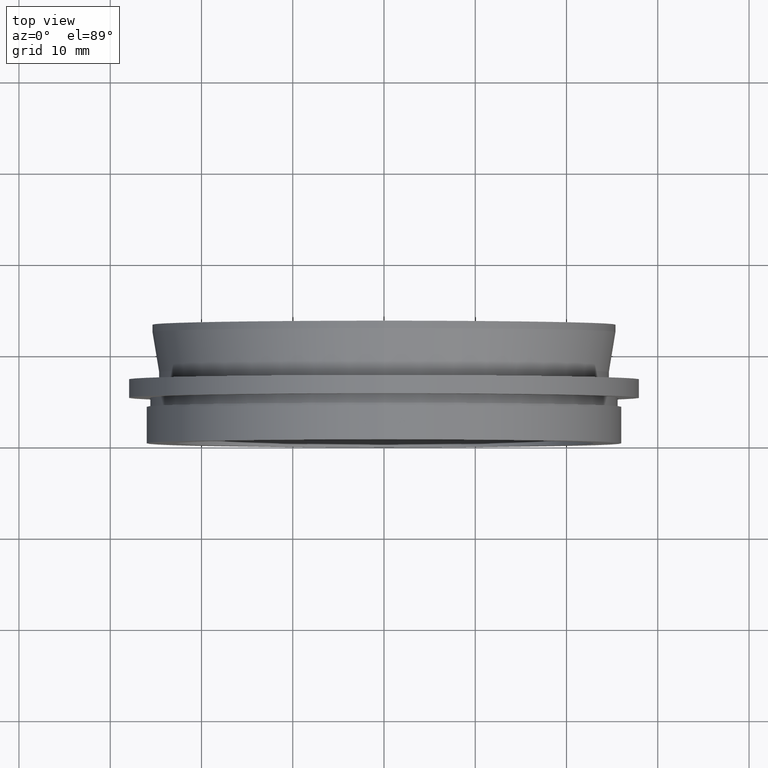
[diagram: clean part render]
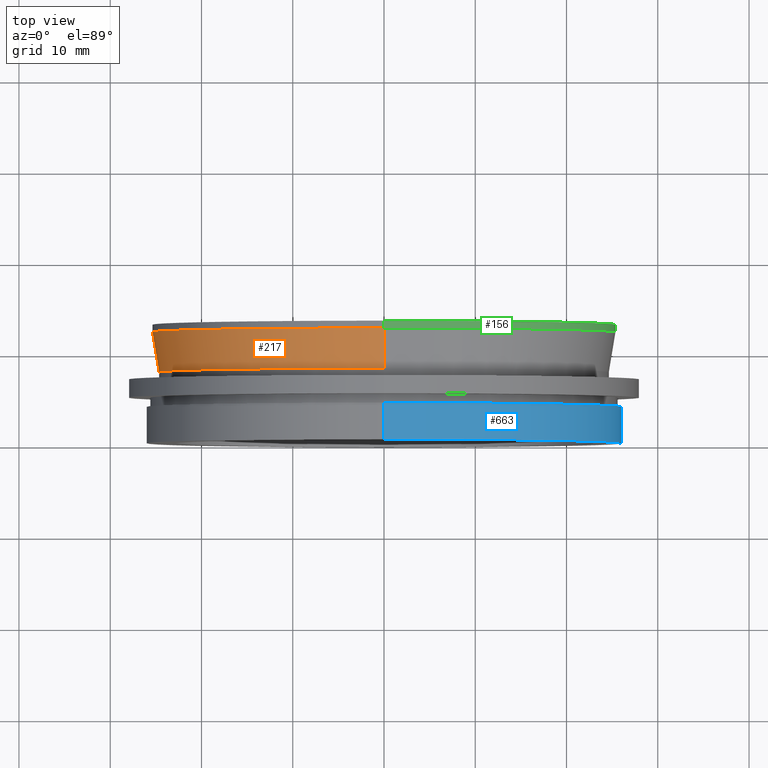
[diagram: same view with three faces highlighted in distinct colors, each labeled with its STEP entity id]
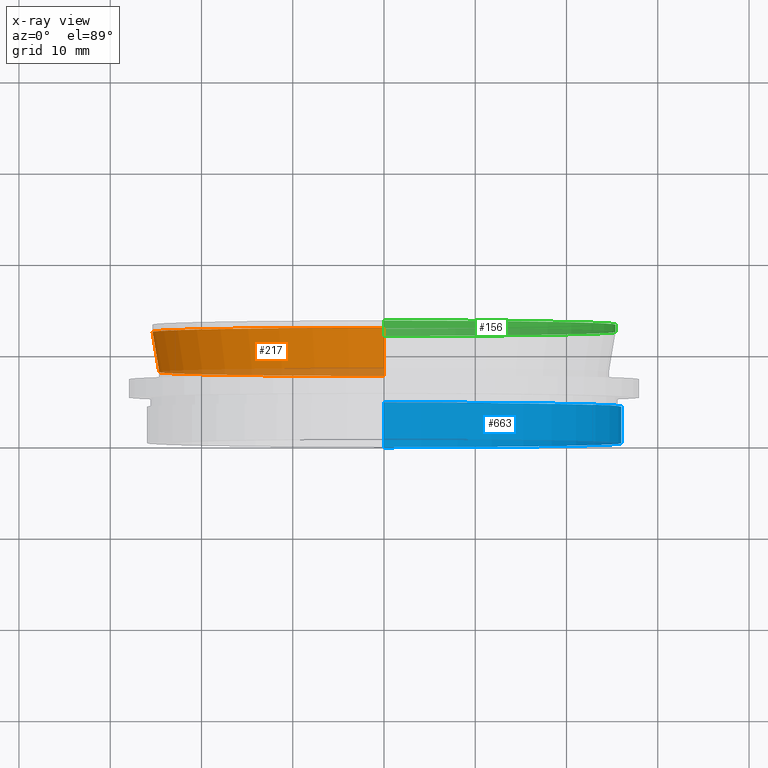
[diagram: x-ray of the same camera — body ghosted, the three highlighted faces saturated]
A machine part, top view with three faces highlighted in distinct colors.
The next image is the same camera in x-ray (body ghosted, the three faces saturated) — at least one of them is partly hidden behind the body in this view.
Their STEP definitions:

[orange] entity #217 — the highlighted conical surface has half-angle 9.42 deg.
#3 = EDGE_CURVE ( 'NONE', #626, #334, #116, .T. ) ;
#29 = EDGE_CURVE ( 'NONE', #177, #334, #99, .T. ) ;
#30 = CARTESIAN_POINT ( 'NONE',  ( 0.0000000000000000000, 12.20000000000000100, 0.0000000000000000000 ) ) ;
#53 = DIRECTION ( 'NONE',  ( 0.0000000000000000000, 0.0000000000000000000, -1.000000000000000000 ) ) ;
#66 = LINE ( 'NONE', #508, #198 ) ;
#76 = DIRECTION ( 'NONE',  ( -0.0000000000000000000, -1.000000000000000000, -0.0000000000000000000 ) ) ;
#78 = VECTOR ( 'NONE', #401, 1000.000000000000000 ) ;
#99 = CIRCLE ( 'NONE', #652, 25.36499999999999800 ) ;
#116 = LINE ( 'NONE', #155, #78 ) ;
#120 = CARTESIAN_POINT ( 'NONE',  ( 0.0000000000000000000, 7.800000000000005200, 24.63500000000000200 ) ) ;
#155 = CARTESIAN_POINT ( 'NONE',  ( 3.106316606037261500E-015, 12.20000000000000100, -25.36499999999999800 ) ) ;
#164 = ORIENTED_EDGE ( 'NONE', *, *, #29, .T. ) ;
#177 = VERTEX_POINT ( 'NONE', #504 ) ;
#180 = FACE_OUTER_BOUND ( 'NONE', #341, .T. ) ;
#198 = VECTOR ( 'NONE', #399, 1000.000000000000000 ) ;
#210 = DIRECTION ( 'NONE',  ( -0.0000000000000000000, -1.000000000000000000, -0.0000000000000000000 ) ) ;
#217 = ADVANCED_FACE ( 'NONE', ( #180 ), #646, .T. ) ;
#222 = CARTESIAN_POINT ( 'NONE',  ( 0.0000000000000000000, 12.20000000000000100, -25.36499999999999800 ) ) ;
#238 = DIRECTION ( 'NONE',  ( 0.0000000000000000000, 0.0000000000000000000, 1.000000000000000000 ) ) ;
#247 = ORIENTED_EDGE ( 'NONE', *, *, #523, .F. ) ;
#334 = VERTEX_POINT ( 'NONE', #222 ) ;
#341 = EDGE_LOOP ( 'NONE', ( #653, #247, #526, #164 ) ) ;
#377 = CIRCLE ( 'NONE', #636, 24.63500000000000200 ) ;
#399 = DIRECTION ( 'NONE',  ( 0.0000000000000000000, 0.9865148492742905600, 0.1636717818114160900 ) ) ;
#401 = DIRECTION ( 'NONE',  ( 2.004401237060946900E-017, 0.9865148492742905600, -0.1636717818114160900 ) ) ;
#433 = CARTESIAN_POINT ( 'NONE',  ( 0.0000000000000000000, 7.800000000000005200, 0.0000000000000000000 ) ) ;
#457 = VERTEX_POINT ( 'NONE', #120 ) ;
#467 = CARTESIAN_POINT ( 'NONE',  ( 0.0000000000000000000, 12.20000000000000100, 0.0000000000000000000 ) ) ;
#472 = AXIS2_PLACEMENT_3D ( 'NONE', #30, #554, #238 ) ;
#504 = CARTESIAN_POINT ( 'NONE',  ( 3.106316606037261500E-015, 12.20000000000000100, 25.36499999999999800 ) ) ;
#508 = CARTESIAN_POINT ( 'NONE',  ( 0.0000000000000000000, 12.20000000000000100, 25.36499999999999800 ) ) ;
#523 = EDGE_CURVE ( 'NONE', #457, #626, #377, .T. ) ;
#526 = ORIENTED_EDGE ( 'NONE', *, *, #631, .T. ) ;
#554 = DIRECTION ( 'NONE',  ( 0.0000000000000000000, 1.000000000000000000, 0.0000000000000000000 ) ) ;
#597 = DIRECTION ( 'NONE',  ( 0.0000000000000000000, 0.0000000000000000000, -1.000000000000000000 ) ) ;
#626 = VERTEX_POINT ( 'NONE', #647 ) ;
#631 = EDGE_CURVE ( 'NONE', #457, #177, #66, .T. ) ;
#636 = AXIS2_PLACEMENT_3D ( 'NONE', #433, #76, #597 ) ;
#646 = CONICAL_SURFACE ( 'NONE', #472, 25.36499999999999800, 0.1644114862470263100 ) ;
#647 = CARTESIAN_POINT ( 'NONE',  ( 3.061616997868383000E-015, 7.800000000000005200, -24.63500000000000200 ) ) ;
#652 = AXIS2_PLACEMENT_3D ( 'NONE', #467, #210, #53 ) ;
#653 = ORIENTED_EDGE ( 'NONE', *, *, #3, .F. ) ;

[blue] entity #663 — the highlighted cylindrical surface (partial cylindrical patch) has radius 26 mm, axis along (-0, -1, -0).
#28 = DIRECTION ( 'NONE',  ( -0.0000000000000000000, -1.000000000000000000, -0.0000000000000000000 ) ) ;
#47 = DIRECTION ( 'NONE',  ( -0.0000000000000000000, -1.000000000000000000, -0.0000000000000000000 ) ) ;
#71 = EDGE_LOOP ( 'NONE', ( #565, #262, #213, #397 ) ) ;
#72 = LINE ( 'NONE', #77, #277 ) ;
#77 = CARTESIAN_POINT ( 'NONE',  ( 3.184081677783118200E-015, 0.0000000000000000000, 26.00000000000000000 ) ) ;
#89 = AXIS2_PLACEMENT_3D ( 'NONE', #664, #47, #412 ) ;
#108 = VERTEX_POINT ( 'NONE', #530 ) ;
#110 = EDGE_CURVE ( 'NONE', #108, #588, #549, .T. ) ;
#139 = CARTESIAN_POINT ( 'NONE',  ( 0.0000000000000000000, 0.0000000000000000000, 0.0000000000000000000 ) ) ;
#167 = VECTOR ( 'NONE', #430, 1000.000000000000000 ) ;
#168 = CARTESIAN_POINT ( 'NONE',  ( 0.0000000000000000000, 4.000000000000000900, 0.0000000000000000000 ) ) ;
#185 = DIRECTION ( 'NONE',  ( -0.0000000000000000000, -1.000000000000000000, -0.0000000000000000000 ) ) ;
#189 = AXIS2_PLACEMENT_3D ( 'NONE', #139, #191, #603 ) ;
#191 = DIRECTION ( 'NONE',  ( -0.0000000000000000000, -1.000000000000000000, -0.0000000000000000000 ) ) ;
#202 = EDGE_CURVE ( 'NONE', #611, #588, #72, .T. ) ;
#213 = ORIENTED_EDGE ( 'NONE', *, *, #110, .F. ) ;
#226 = CARTESIAN_POINT ( 'NONE',  ( 3.184081677783118200E-015, -8.673617379884035500E-016, 26.00000000000000000 ) ) ;
#262 = ORIENTED_EDGE ( 'NONE', *, *, #202, .T. ) ;
#277 = VECTOR ( 'NONE', #185, 1000.000000000000000 ) ;
#307 = CIRCLE ( 'NONE', #310, 26.00000000000000000 ) ;
#310 = AXIS2_PLACEMENT_3D ( 'NONE', #168, #28, #591 ) ;
#397 = ORIENTED_EDGE ( 'NONE', *, *, #425, .F. ) ;
#408 = FACE_OUTER_BOUND ( 'NONE', #71, .T. ) ;
#409 = CYLINDRICAL_SURFACE ( 'NONE', #189, 26.00000000000000000 ) ;
#412 = DIRECTION ( 'NONE',  ( 0.0000000000000000000, 0.0000000000000000000, -1.000000000000000000 ) ) ;
#425 = EDGE_CURVE ( 'NONE', #499, #108, #511, .T. ) ;
#430 = DIRECTION ( 'NONE',  ( -0.0000000000000000000, -1.000000000000000000, -0.0000000000000000000 ) ) ;
#437 = CARTESIAN_POINT ( 'NONE',  ( 3.184081677783118200E-015, 4.000000000000000900, 26.00000000000000000 ) ) ;
#448 = EDGE_CURVE ( 'NONE', #499, #611, #307, .T. ) ;
#489 = CARTESIAN_POINT ( 'NONE',  ( 0.0000000000000000000, 4.000000000000000900, -26.00000000000000000 ) ) ;
#499 = VERTEX_POINT ( 'NONE', #489 ) ;
#511 = LINE ( 'NONE', #634, #167 ) ;
#530 = CARTESIAN_POINT ( 'NONE',  ( 0.0000000000000000000, -8.673617379884035500E-016, -26.00000000000000000 ) ) ;
#549 = CIRCLE ( 'NONE', #89, 26.00000000000000000 ) ;
#565 = ORIENTED_EDGE ( 'NONE', *, *, #448, .T. ) ;
#588 = VERTEX_POINT ( 'NONE', #226 ) ;
#591 = DIRECTION ( 'NONE',  ( 0.0000000000000000000, 0.0000000000000000000, -1.000000000000000000 ) ) ;
#603 = DIRECTION ( 'NONE',  ( 0.0000000000000000000, 0.0000000000000000000, -1.000000000000000000 ) ) ;
#611 = VERTEX_POINT ( 'NONE', #437 ) ;
#634 = CARTESIAN_POINT ( 'NONE',  ( 0.0000000000000000000, 0.0000000000000000000, -26.00000000000000000 ) ) ;
#663 = ADVANCED_FACE ( 'NONE', ( #408 ), #409, .T. ) ;
#664 = CARTESIAN_POINT ( 'NONE',  ( 0.0000000000000000000, -8.673617379884035500E-016, 0.0000000000000000000 ) ) ;

[green] entity #156 — the highlighted cylindrical surface (partial cylindrical patch) has radius 25.365 mm, axis along (-0, -1, -0).
#17 = AXIS2_PLACEMENT_3D ( 'NONE', #502, #602, #190 ) ;
#50 = EDGE_CURVE ( 'NONE', #107, #177, #515, .T. ) ;
#59 = DIRECTION ( 'NONE',  ( -0.0000000000000000000, -1.000000000000000000, -0.0000000000000000000 ) ) ;
#83 = AXIS2_PLACEMENT_3D ( 'NONE', #428, #59, #426 ) ;
#91 = DIRECTION ( 'NONE',  ( -0.0000000000000000000, -1.000000000000000000, -0.0000000000000000000 ) ) ;
#107 = VERTEX_POINT ( 'NONE', #356 ) ;
#118 = FACE_OUTER_BOUND ( 'NONE', #654, .T. ) ;
#138 = CARTESIAN_POINT ( 'NONE',  ( 0.0000000000000000000, 13.00000000000000200, -25.36499999999999800 ) ) ;
#156 = ADVANCED_FACE ( 'NONE', ( #118 ), #293, .T. ) ;
#177 = VERTEX_POINT ( 'NONE', #504 ) ;
#182 = CIRCLE ( 'NONE', #628, 25.36499999999999800 ) ;
#190 = DIRECTION ( 'NONE',  ( 0.0000000000000000000, 0.0000000000000000000, -1.000000000000000000 ) ) ;
#195 = ORIENTED_EDGE ( 'NONE', *, *, #648, .T. ) ;
#205 = ORIENTED_EDGE ( 'NONE', *, *, #662, .F. ) ;
#219 = VECTOR ( 'NONE', #525, 1000.000000000000000 ) ;
#222 = CARTESIAN_POINT ( 'NONE',  ( 0.0000000000000000000, 12.20000000000000100, -25.36499999999999800 ) ) ;
#267 = VERTEX_POINT ( 'NONE', #138 ) ;
#293 = CYLINDRICAL_SURFACE ( 'NONE', #17, 25.36499999999999800 ) ;
#295 = CARTESIAN_POINT ( 'NONE',  ( 0.0000000000000000000, 0.0000000000000000000, -25.36499999999999800 ) ) ;
#302 = LINE ( 'NONE', #295, #551 ) ;
#331 = CARTESIAN_POINT ( 'NONE',  ( 0.0000000000000000000, 13.00000000000000200, 0.0000000000000000000 ) ) ;
#334 = VERTEX_POINT ( 'NONE', #222 ) ;
#356 = CARTESIAN_POINT ( 'NONE',  ( 3.106316606037261500E-015, 13.00000000000000200, 25.36499999999999800 ) ) ;
#357 = ORIENTED_EDGE ( 'NONE', *, *, #50, .T. ) ;
#369 = EDGE_CURVE ( 'NONE', #334, #177, #440, .T. ) ;
#426 = DIRECTION ( 'NONE',  ( 0.0000000000000000000, 0.0000000000000000000, -1.000000000000000000 ) ) ;
#428 = CARTESIAN_POINT ( 'NONE',  ( 0.0000000000000000000, 12.20000000000000100, 0.0000000000000000000 ) ) ;
#440 = CIRCLE ( 'NONE', #83, 25.36499999999999800 ) ;
#480 = ORIENTED_EDGE ( 'NONE', *, *, #369, .F. ) ;
#502 = CARTESIAN_POINT ( 'NONE',  ( 0.0000000000000000000, 0.0000000000000000000, 0.0000000000000000000 ) ) ;
#503 = DIRECTION ( 'NONE',  ( -0.0000000000000000000, -1.000000000000000000, -0.0000000000000000000 ) ) ;
#504 = CARTESIAN_POINT ( 'NONE',  ( 3.106316606037261500E-015, 12.20000000000000100, 25.36499999999999800 ) ) ;
#505 = DIRECTION ( 'NONE',  ( 0.0000000000000000000, 0.0000000000000000000, -1.000000000000000000 ) ) ;
#515 = LINE ( 'NONE', #620, #219 ) ;
#525 = DIRECTION ( 'NONE',  ( -0.0000000000000000000, -1.000000000000000000, -0.0000000000000000000 ) ) ;
#551 = VECTOR ( 'NONE', #91, 1000.000000000000000 ) ;
#602 = DIRECTION ( 'NONE',  ( -0.0000000000000000000, -1.000000000000000000, -0.0000000000000000000 ) ) ;
#620 = CARTESIAN_POINT ( 'NONE',  ( 3.106316606037261500E-015, 0.0000000000000000000, 25.36499999999999800 ) ) ;
#628 = AXIS2_PLACEMENT_3D ( 'NONE', #331, #503, #505 ) ;
#648 = EDGE_CURVE ( 'NONE', #267, #107, #182, .T. ) ;
#654 = EDGE_LOOP ( 'NONE', ( #195, #357, #480, #205 ) ) ;
#662 = EDGE_CURVE ( 'NONE', #267, #334, #302, .T. ) ;